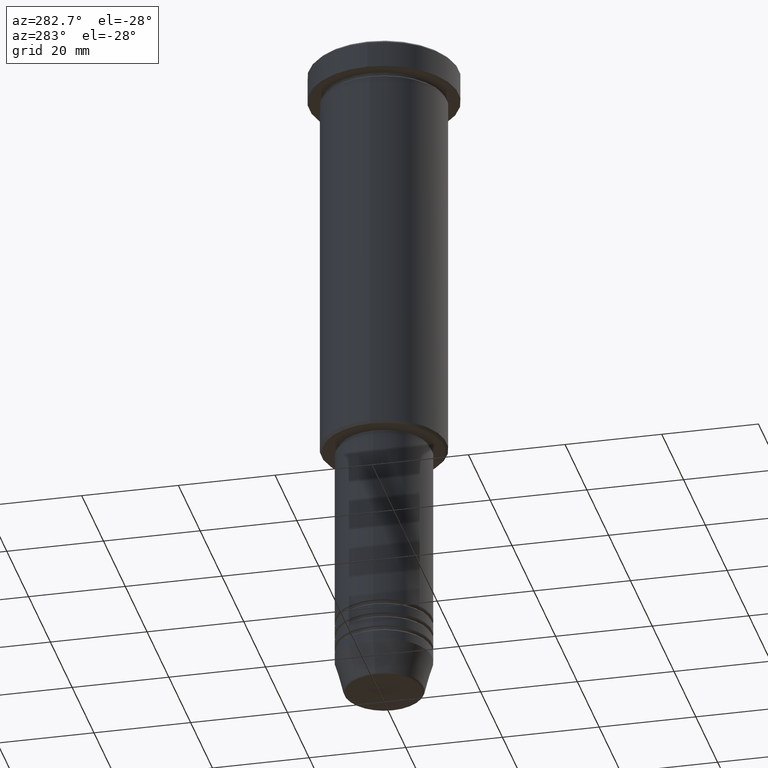
[diagram: clean part render]
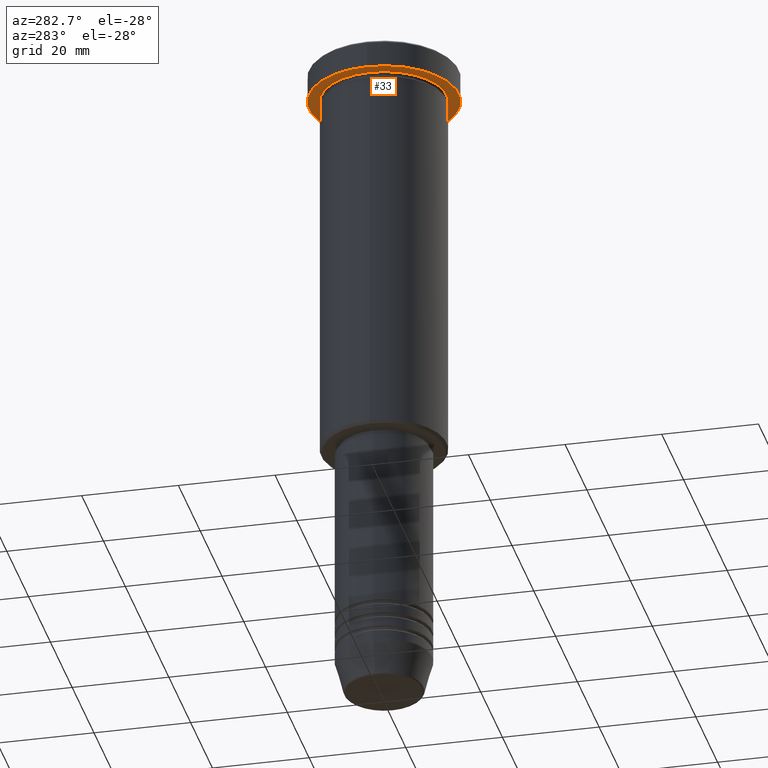
[diagram: same view with one face highlighted and labeled with its STEP entity id]
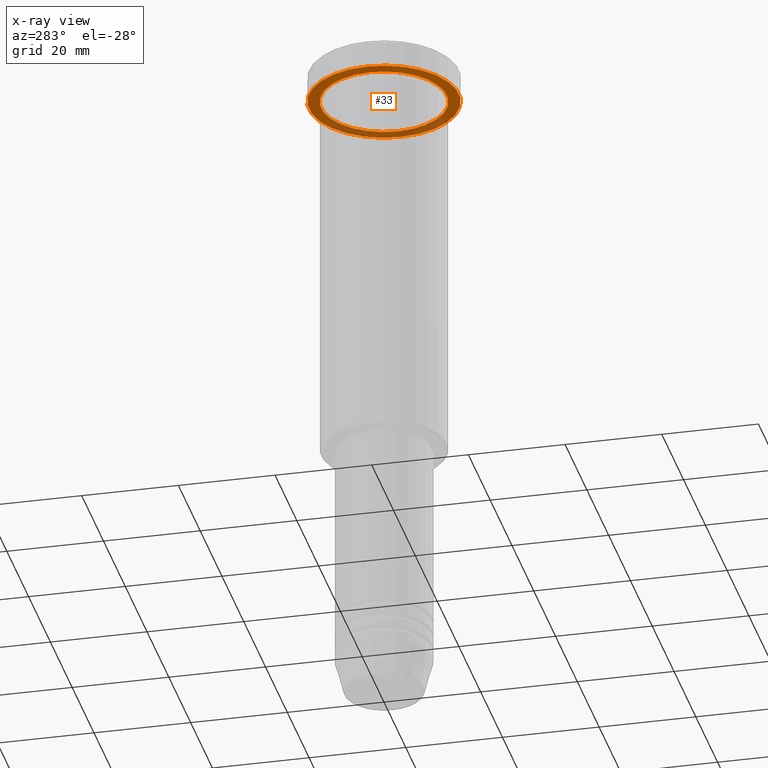
[diagram: x-ray of the same camera — body ghosted, the highlighted face saturated]
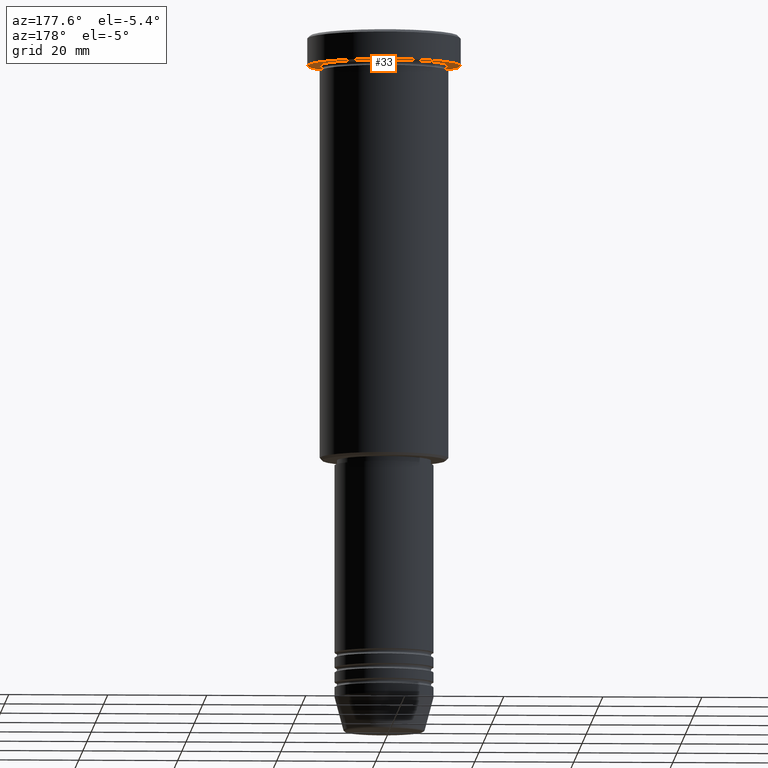
[diagram: same view with one face highlighted and labeled with its STEP entity id]
A machine part, auxiliary view. The second image highlights one B-rep face of the part: STEP entity #33.
The next image is the same camera in x-ray: the body ghosted, the highlighted face saturated — about 32% of this face is hidden behind the body in this view.
A second angle (auxiliary view) of the same face is appended — the face is thin or edge-on in the first view.
In plain terms, the highlighted planar face has unit normal (0, 0, -1).
Its self-contained STEP definition (entity closure, byte-faithful):
#21 = DIRECTION ( 'NONE',  ( -1.000000000000000000, 0.000000000000000000, -0.000000000000000000 ) ) ;
#23 = AXIS2_PLACEMENT_3D ( 'NONE', #92, #111, #21 ) ;
#29 = CARTESIAN_POINT ( 'NONE',  ( 0.000000000000000000, 0.000000000000000000, -5.999999999999995559 ) ) ;
#33 = ADVANCED_FACE ( 'NONE', ( #265, #1099 ), #466, .T. ) ;
#92 = CARTESIAN_POINT ( 'NONE',  ( 0.000000000000000000, 15.50000000000000000, -5.999999999999995559 ) ) ;
#111 = DIRECTION ( 'NONE',  ( 0.000000000000000000, 0.000000000000000000, -1.000000000000000000 ) ) ;
#164 = CIRCLE ( 'NONE', #408, 13.00000000000000000 ) ;
#179 = DIRECTION ( 'NONE',  ( 1.000000000000000000, 0.000000000000000000, 0.000000000000000000 ) ) ;
#191 = CARTESIAN_POINT ( 'NONE',  ( 13.00000000000000000, 1.592040838891559095E-15, -5.999999999999994671 ) ) ;
#209 = CIRCLE ( 'NONE', #618, 15.50000000000000000 ) ;
#250 = EDGE_LOOP ( 'NONE', ( #715, #432 ) ) ;
#265 = FACE_BOUND ( 'NONE', #513, .T. ) ;
#267 = CARTESIAN_POINT ( 'NONE',  ( 0.000000000000000000, 0.000000000000000000, -5.999999999999995559 ) ) ;
#329 = EDGE_CURVE ( 'NONE', #990, #690, #459, .T. ) ;
#333 = VERTEX_POINT ( 'NONE', #754 ) ;
#383 = DIRECTION ( 'NONE',  ( -0.000000000000000000, -0.000000000000000000, 1.000000000000000000 ) ) ;
#394 = ORIENTED_EDGE ( 'NONE', *, *, #748, .T. ) ;
#408 = AXIS2_PLACEMENT_3D ( 'NONE', #561, #472, #669 ) ;
#432 = ORIENTED_EDGE ( 'NONE', *, *, #1172, .F. ) ;
#458 = CARTESIAN_POINT ( 'NONE',  ( 0.000000000000000000, 0.000000000000000000, -5.999999999999995559 ) ) ;
#459 = CIRCLE ( 'NONE', #1129, 15.50000000000000000 ) ;
#466 = PLANE ( 'NONE',  #23 ) ;
#472 = DIRECTION ( 'NONE',  ( -0.000000000000000000, -0.000000000000000000, 1.000000000000000000 ) ) ;
#499 = VERTEX_POINT ( 'NONE', #191 ) ;
#513 = EDGE_LOOP ( 'NONE', ( #825, #394 ) ) ;
#561 = CARTESIAN_POINT ( 'NONE',  ( 0.000000000000000000, 0.000000000000000000, -5.999999999999995559 ) ) ;
#618 = AXIS2_PLACEMENT_3D ( 'NONE', #29, #781, #1050 ) ;
#636 = DIRECTION ( 'NONE',  ( -1.000000000000000000, 0.000000000000000000, 0.000000000000000000 ) ) ;
#669 = DIRECTION ( 'NONE',  ( -1.000000000000000000, 0.000000000000000000, 0.000000000000000000 ) ) ;
#690 = VERTEX_POINT ( 'NONE', #1022 ) ;
#696 = CARTESIAN_POINT ( 'NONE',  ( 15.50000000000000000, 0.000000000000000000, -5.999999999999995559 ) ) ;
#715 = ORIENTED_EDGE ( 'NONE', *, *, #329, .F. ) ;
#748 = EDGE_CURVE ( 'NONE', #499, #333, #931, .T. ) ;
#754 = CARTESIAN_POINT ( 'NONE',  ( -13.00000000000000000, 0.000000000000000000, -5.999999999999994671 ) ) ;
#781 = DIRECTION ( 'NONE',  ( -0.000000000000000000, -0.000000000000000000, 1.000000000000000000 ) ) ;
#794 = EDGE_CURVE ( 'NONE', #333, #499, #164, .T. ) ;
#825 = ORIENTED_EDGE ( 'NONE', *, *, #794, .T. ) ;
#912 = AXIS2_PLACEMENT_3D ( 'NONE', #458, #383, #636 ) ;
#931 = CIRCLE ( 'NONE', #912, 13.00000000000000000 ) ;
#990 = VERTEX_POINT ( 'NONE', #696 ) ;
#996 = DIRECTION ( 'NONE',  ( -0.000000000000000000, -0.000000000000000000, 1.000000000000000000 ) ) ;
#1022 = CARTESIAN_POINT ( 'NONE',  ( -15.50000000000000000, 1.898202538678397557E-15, -5.999999999999995559 ) ) ;
#1050 = DIRECTION ( 'NONE',  ( 1.000000000000000000, 0.000000000000000000, 0.000000000000000000 ) ) ;
#1099 = FACE_OUTER_BOUND ( 'NONE', #250, .T. ) ;
#1129 = AXIS2_PLACEMENT_3D ( 'NONE', #267, #996, #179 ) ;
#1172 = EDGE_CURVE ( 'NONE', #690, #990, #209, .T. ) ;